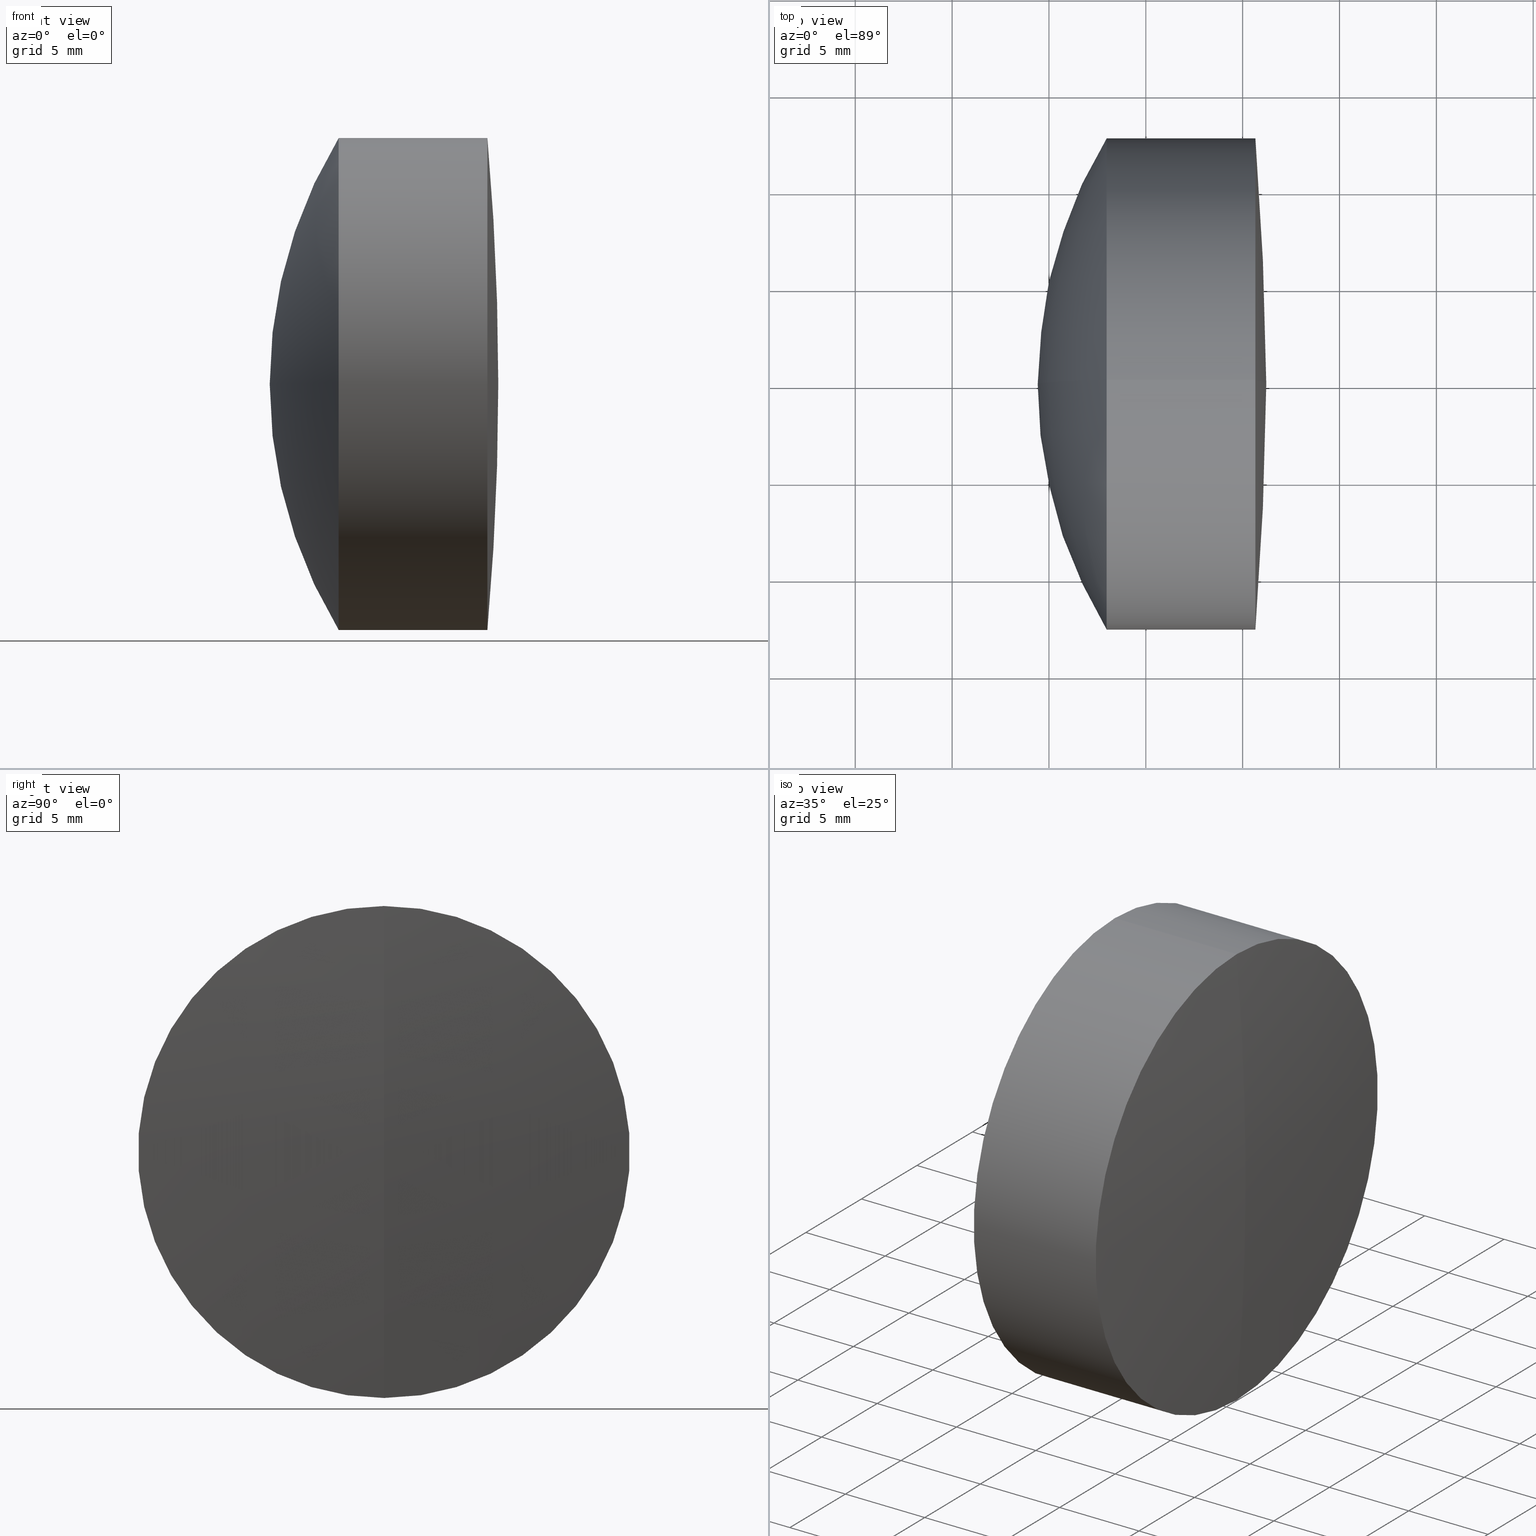
[diagram: canonical four-view strip — front | top / right | iso, engineering-drawing reading convention]
A machine part, canonical four-view strip (front | top / right | iso — engineering-drawing reading convention). The complete STEP part file that produces these views, byte-faithful:
ISO-10303-21;
HEADER;
FILE_DESCRIPTION (( 'STEP AP214' ),
    '1' );
FILE_NAME ('145160.STEP',
    '2019-06-07T04:26:02',
    ( 'user' ),
    ( '΢���й�' ),
    'SwSTEP 2.0',
    'SolidWorks 2016',
    '' );
FILE_SCHEMA (( 'AUTOMOTIVE_DESIGN' ));
ENDSEC;

DATA;
#1 = ORIENTED_EDGE ( 'NONE', *, *, #250, .T. ) ;
#2 = ORIENTED_EDGE ( 'NONE', *, *, #11, .T. ) ;
#3 = CARTESIAN_POINT ( 'NONE',  ( 43.85023858577233100, 0.0000000000000000000, -2.979725173126728300E-016 ) ) ;
#4 = ORIENTED_EDGE ( 'NONE', *, *, #292, .T. ) ;
#5 = ORIENTED_EDGE ( 'NONE', *, *, #297, .T. ) ;
#6 = VERTEX_POINT ( 'NONE', #286 ) ;
#7 = FACE_OUTER_BOUND ( 'NONE', #317, .T. ) ;
#8 = CARTESIAN_POINT ( 'NONE',  ( -0.8160621761658039000, 1.555301434917138400E-015, -12.69999999999999900 ) ) ;
#9 = ORIENTED_EDGE ( 'NONE', *, *, #125, .T. ) ;
#10 = DIRECTION ( 'NONE',  ( 0.0000000000000000000, -1.000000000000000000, 0.0000000000000000000 ) ) ;
#11 = EDGE_CURVE ( 'NONE', #28, #26, #267, .T. ) ;
#12 = CARTESIAN_POINT ( 'NONE',  ( 8.330238585772336900, 0.0000000000000000000, 0.0000000000000000000 ) ) ;
#13 = DIRECTION ( 'NONE',  ( 0.0000000000000000000, 0.0000000000000000000, -1.000000000000000000 ) ) ;
#14 = ORIENTED_EDGE ( 'NONE', *, *, #148, .F. ) ;
#15 = ORIENTED_EDGE ( 'NONE', *, *, #56, .T. ) ;
#16 = AXIS2_PLACEMENT_3D ( 'NONE', #3, #290, #70 ) ;
#17 = AXIS2_PLACEMENT_3D ( 'NONE', #109, #200, #213 ) ;
#18 = CARTESIAN_POINT ( 'NONE',  ( 8.330238585772336900, 0.0000000000000000000, 0.0000000000000000000 ) ) ;
#19 = DIRECTION ( 'NONE',  ( 0.0000000000000000000, 0.0000000000000000000, -1.000000000000000000 ) ) ;
#20 = EDGE_CURVE ( 'NONE', #132, #149, #75, .T. ) ;
#21 = FACE_OUTER_BOUND ( 'NONE', #78, .T. ) ;
#22 = EDGE_LOOP ( 'NONE', ( #259, #81, #327 ) ) ;
#23 = AXIS2_PLACEMENT_3D ( 'NONE', #340, #222, #260 ) ;
#24 = EDGE_LOOP ( 'NONE', ( #285, #9, #15 ) ) ;
#25 = DIRECTION ( 'NONE',  ( -0.0000000000000000000, -1.000000000000000000, -0.0000000000000000000 ) ) ;
#26 = VERTEX_POINT ( 'NONE', #223 ) ;
#27 = CYLINDRICAL_SURFACE ( 'NONE', #123, 12.69999999999999900 ) ;
#28 = VERTEX_POINT ( 'NONE', #254 ) ;
#29 = MANIFOLD_SOLID_BREP ( '��ת1', #274 ) ;
#30 = DIRECTION ( 'NONE',  ( -1.000000000000000000, -0.0000000000000000000, -0.0000000000000000000 ) ) ;
#31 = AXIS2_PLACEMENT_3D ( 'NONE', #301, #232, #117 ) ;
#32 = ADVANCED_FACE ( 'NONE', ( #209 ), #180, .T. ) ;
#33 = VECTOR ( 'NONE', #57, 1000.000000000000000 ) ;
#34 = FILL_AREA_STYLE_COLOUR ( '', #284 ) ;
#35 = CARTESIAN_POINT ( 'NONE',  ( -0.8160621761658039000, 0.0000000000000000000, 0.0000000000000000000 ) ) ;
#36 = DIRECTION ( 'NONE',  ( 0.0000000000000000000, -1.224646799147353500E-016, 1.000000000000000000 ) ) ;
#37 = SURFACE_STYLE_FILL_AREA ( #287 ) ;
#38 = DIRECTION ( 'NONE',  ( -0.0000000000000000000, 1.000000000000000000, 1.224646799147353200E-016 ) ) ;
#39 = MECHANICAL_DESIGN_GEOMETRIC_PRESENTATION_REPRESENTATION (  '', ( #169 ), #157 ) ;
#40 = PRESENTATION_LAYER_ASSIGNMENT (  '', '', ( #169 ) ) ;
#41 = DIRECTION ( 'NONE',  ( 0.0000000000000000000, 1.000000000000000000, 0.0000000000000000000 ) ) ;
#42 = CIRCLE ( 'NONE', #176, 21.08999999999999600 ) ;
#43 = SURFACE_SIDE_STYLE ('',( #37 ) ) ;
#44 = PRODUCT_DEFINITION_CONTEXT ( 'detailed design', #255, 'design' ) ;
#45 = FACE_OUTER_BOUND ( 'NONE', #216, .T. ) ;
#46 = VERTEX_POINT ( 'NONE', #89 ) ;
#47 = ORIENTED_EDGE ( 'NONE', *, *, #138, .T. ) ;
#48 = CARTESIAN_POINT ( 'NONE',  ( 25.16764040434280100, -1.555301434917138400E-015, 12.69999999999999900 ) ) ;
#49 = CARTESIAN_POINT ( 'NONE',  ( 25.16764040434280100, 0.0000000000000000000, 12.69999999999999900 ) ) ;
#50 = SPHERICAL_SURFACE ( 'NONE', #221, 21.08999999999999600 ) ;
#51 = EDGE_LOOP ( 'NONE', ( #307, #62, #1 ) ) ;
#52 = AXIS2_PLACEMENT_3D ( 'NONE', #188, #141, #143 ) ;
#53 =( NAMED_UNIT ( * ) PLANE_ANGLE_UNIT ( ) SI_UNIT ( $, .RADIAN. ) );
#54 = DIRECTION ( 'NONE',  ( 0.0000000000000000000, 0.0000000000000000000, 1.000000000000000000 ) ) ;
#55 = VERTEX_POINT ( 'NONE', #336 ) ;
#56 = EDGE_CURVE ( 'NONE', #26, #338, #129, .T. ) ;
#57 = DIRECTION ( 'NONE',  ( -1.000000000000000000, -0.0000000000000000000, -0.0000000000000000000 ) ) ;
#58 = ORIENTED_EDGE ( 'NONE', *, *, #211, .F. ) ;
#59 = DIRECTION ( 'NONE',  ( -1.000000000000000000, -0.0000000000000000000, -0.0000000000000000000 ) ) ;
#60 = DIRECTION ( 'NONE',  ( 0.0000000000000000000, 1.000000000000000000, -0.0000000000000000000 ) ) ;
#61 = CARTESIAN_POINT ( 'NONE',  ( 31.22023858577233200, 0.0000000000000000000, -8.812558366664354600E-015 ) ) ;
#62 = ORIENTED_EDGE ( 'NONE', *, *, #262, .T. ) ;
#63 =( LENGTH_UNIT ( ) NAMED_UNIT ( * ) SI_UNIT ( .MILLI., .METRE. ) );
#64 = ADVANCED_FACE ( 'NONE', ( #257 ), #145, .F. ) ;
#65 = AXIS2_PLACEMENT_3D ( 'NONE', #18, #10, #19 ) ;
#66 =( NAMED_UNIT ( * ) PLANE_ANGLE_UNIT ( ) SI_UNIT ( $, .RADIAN. ) );
#67 = EDGE_CURVE ( 'NONE', #6, #135, #181, .T. ) ;
#68 = CARTESIAN_POINT ( 'NONE',  ( 8.330238585772336900, 0.0000000000000000000, 0.0000000000000000000 ) ) ;
#69 = VECTOR ( 'NONE', #116, 1000.000000000000000 ) ;
#70 = DIRECTION ( 'NONE',  ( 0.0000000000000000000, 0.0000000000000000000, 1.000000000000000000 ) ) ;
#71 = CLOSED_SHELL ( 'NONE', ( #278, #133, #64, #160, #164, #246 ) ) ;
#72 = CARTESIAN_POINT ( 'NONE',  ( -0.5519199926577972300, 1.555301434917138200E-015, -12.69999999999999800 ) ) ;
#73 = ORIENTED_EDGE ( 'NONE', *, *, #119, .F. ) ;
#74 =( NAMED_UNIT ( * ) SI_UNIT ( $, .STERADIAN. ) SOLID_ANGLE_UNIT ( ) );
#75 = CIRCLE ( 'NONE', #65, 21.08999999999999600 ) ;
#76 = FILL_AREA_STYLE_COLOUR ( '', #316 ) ;
#77 = AXIS2_PLACEMENT_3D ( 'NONE', #212, #186, #291 ) ;
#78 = EDGE_LOOP ( 'NONE', ( #87, #90, #190 ) ) ;
#79 = APPLICATION_PROTOCOL_DEFINITION ( 'draft international standard', 'automotive_design', 1998, #217 ) ;
#80 = DIRECTION ( 'NONE',  ( 0.0000000000000000000, 0.0000000000000000000, -1.000000000000000000 ) ) ;
#81 = ORIENTED_EDGE ( 'NONE', *, *, #347, .T. ) ;
#82 = CIRCLE ( 'NONE', #341, 143.9199999999999900 ) ;
#83 = DIRECTION ( 'NONE',  ( 0.0000000000000000000, -1.000000000000000000, -1.224646799147353200E-016 ) ) ;
#84 = UNCERTAINTY_MEASURE_WITH_UNIT (LENGTH_MEASURE( 1.000000000000000100E-005 ), #113, 'distance_accuracy_value', 'NONE');
#85 = CYLINDRICAL_SURFACE ( 'NONE', #300, 12.69999999999999900 ) ;
#86 = PRODUCT_DEFINITION ( 'δ֪', '', #324, #44 ) ;
#87 = ORIENTED_EDGE ( 'NONE', *, *, #215, .F. ) ;
#88 = PRESENTATION_LAYER_ASSIGNMENT (  '', '', ( #115 ) ) ;
#89 = CARTESIAN_POINT ( 'NONE',  ( 30.65879745129665300, -1.555301434917133500E-015, 12.69999999999995800 ) ) ;
#90 = ORIENTED_EDGE ( 'NONE', *, *, #119, .T. ) ;
#91 =( NAMED_UNIT ( * ) PLANE_ANGLE_UNIT ( ) SI_UNIT ( $, .RADIAN. ) );
#92 = PRESENTATION_STYLE_ASSIGNMENT (( #318 ) ) ;
#93 = EDGE_CURVE ( 'NONE', #149, #55, #146, .T. ) ;
#94 =( GEOMETRIC_REPRESENTATION_CONTEXT ( 3 ) GLOBAL_UNCERTAINTY_ASSIGNED_CONTEXT ( ( #174 ) ) GLOBAL_UNIT_ASSIGNED_CONTEXT ( ( #99, #91, #315 ) ) REPRESENTATION_CONTEXT ( 'NONE', 'WORKASPACE' ) );
#95 = CYLINDRICAL_SURFACE ( 'NONE', #17, 12.69999999999999800 ) ;
#96 = AXIS2_PLACEMENT_3D ( 'NONE', #304, #251, #36 ) ;
#97 =( NAMED_UNIT ( * ) PLANE_ANGLE_UNIT ( ) SI_UNIT ( $, .RADIAN. ) );
#98 = DIRECTION ( 'NONE',  ( 0.0000000000000000000, 0.0000000000000000000, 1.000000000000000000 ) ) ;
#99 =( LENGTH_UNIT ( ) NAMED_UNIT ( * ) SI_UNIT ( .MILLI., .METRE. ) );
#100 = AXIS2_PLACEMENT_3D ( 'NONE', #114, #183, #142 ) ;
#101 = DIRECTION ( 'NONE',  ( -1.000000000000000000, -0.0000000000000000000, -0.0000000000000000000 ) ) ;
#102 = CARTESIAN_POINT ( 'NONE',  ( 8.330238585772336900, 0.0000000000000000000, 0.0000000000000000000 ) ) ;
#103 = FILL_AREA_STYLE ('',( #76 ) ) ;
#104 = CARTESIAN_POINT ( 'NONE',  ( -0.8160621761658039000, 0.0000000000000000000, 0.0000000000000000000 ) ) ;
#105 = PRODUCT ( '145160', '145160', '', ( #249 ) ) ;
#106 = CIRCLE ( 'NONE', #151, 12.69999999999999800 ) ;
#107 = CIRCLE ( 'NONE', #100, 12.69999999999999900 ) ;
#108 = ORIENTED_EDGE ( 'NONE', *, *, #279, .T. ) ;
#109 = CARTESIAN_POINT ( 'NONE',  ( -0.5519199926577972300, 0.0000000000000000000, 0.0000000000000000000 ) ) ;
#110 = EDGE_CURVE ( 'NONE', #46, #28, #165, .T. ) ;
#111 =( GEOMETRIC_REPRESENTATION_CONTEXT ( 3 ) GLOBAL_UNCERTAINTY_ASSIGNED_CONTEXT ( ( #84 ) ) GLOBAL_UNIT_ASSIGNED_CONTEXT ( ( #113, #53, #74 ) ) REPRESENTATION_CONTEXT ( 'NONE', 'WORKASPACE' ) );
#112 = LINE ( 'NONE', #322, #166 ) ;
#113 =( LENGTH_UNIT ( ) NAMED_UNIT ( * ) SI_UNIT ( .MILLI., .METRE. ) );
#114 = CARTESIAN_POINT ( 'NONE',  ( 25.16764040434280100, 0.0000000000000000000, 0.0000000000000000000 ) ) ;
#115 = STYLED_ITEM ( 'NONE', ( #92 ), #144 ) ;
#116 = DIRECTION ( 'NONE',  ( -1.000000000000000000, -0.0000000000000000000, -0.0000000000000000000 ) ) ;
#117 = DIRECTION ( 'NONE',  ( 0.0000000000000000000, 0.0000000000000000000, -1.000000000000000000 ) ) ;
#118 = ORIENTED_EDGE ( 'NONE', *, *, #67, .F. ) ;
#119 = EDGE_CURVE ( 'NONE', #245, #28, #82, .T. ) ;
#120 = VERTEX_POINT ( 'NONE', #269 ) ;
#121 = CARTESIAN_POINT ( 'NONE',  ( 43.85023858577233100, 0.0000000000000000000, -2.979725173126728300E-016 ) ) ;
#122 = AXIS2_PLACEMENT_3D ( 'NONE', #265, #218, #308 ) ;
#123 = AXIS2_PLACEMENT_3D ( 'NONE', #104, #207, #323 ) ;
#124 = EDGE_LOOP ( 'NONE', ( #126, #182, #58 ) ) ;
#125 = EDGE_CURVE ( 'NONE', #235, #26, #236, .T. ) ;
#126 = ORIENTED_EDGE ( 'NONE', *, *, #347, .F. ) ;
#127 = DIRECTION ( 'NONE',  ( 0.0000000000000000000, 0.0000000000000000000, 1.000000000000000000 ) ) ;
#128 = EDGE_CURVE ( 'NONE', #28, #46, #106, .T. ) ;
#129 = CIRCLE ( 'NONE', #52, 12.69999999999999800 ) ;
#130 = PRESENTATION_STYLE_ASSIGNMENT (( #139 ) ) ;
#131 = CARTESIAN_POINT ( 'NONE',  ( 8.330238585772336900, 0.0000000000000000000, 0.0000000000000000000 ) ) ;
#132 = VERTEX_POINT ( 'NONE', #167 ) ;
#133 = ADVANCED_FACE ( 'NONE', ( #256 ), #337, .T. ) ;
#134 = AXIS2_PLACEMENT_3D ( 'NONE', #332, #242, #335 ) ;
#135 = VERTEX_POINT ( 'NONE', #224 ) ;
#136 = EDGE_LOOP ( 'NONE', ( #280, #253, #108, #227 ) ) ;
#137 = CARTESIAN_POINT ( 'NONE',  ( -0.8160621761658039000, 0.0000000000000000000, 12.69999999999999900 ) ) ;
#138 = EDGE_CURVE ( 'NONE', #120, #135, #252, .T. ) ;
#139 = SURFACE_STYLE_USAGE ( .BOTH. , #329 ) ;
#140 = SPHERICAL_SURFACE ( 'NONE', #77, 143.9199999999999900 ) ;
#141 = DIRECTION ( 'NONE',  ( -1.000000000000000000, -0.0000000000000000000, -0.0000000000000000000 ) ) ;
#142 = DIRECTION ( 'NONE',  ( 0.0000000000000000000, 0.0000000000000000000, 1.000000000000000000 ) ) ;
#143 = DIRECTION ( 'NONE',  ( 0.0000000000000000000, 0.0000000000000000000, 1.000000000000000000 ) ) ;
#144 = MANIFOLD_SOLID_BREP ( '��ת2', #71 ) ;
#145 = SPHERICAL_SURFACE ( 'NONE', #210, 21.08999999999999600 ) ;
#146 = CIRCLE ( 'NONE', #264, 12.69999999999999900 ) ;
#147 = EDGE_LOOP ( 'NONE', ( #258, #2, #273, #14 ) ) ;
#148 = EDGE_CURVE ( 'NONE', #46, #338, #112, .T. ) ;
#149 = VERTEX_POINT ( 'NONE', #49 ) ;
#150 = CARTESIAN_POINT ( 'NONE',  ( -112.6997614142276700, 0.0000000000000000000, 0.0000000000000000000 ) ) ;
#151 = AXIS2_PLACEMENT_3D ( 'NONE', #195, #298, #283 ) ;
#152 = AXIS2_PLACEMENT_3D ( 'NONE', #309, #330, #54 ) ;
#153 = DIRECTION ( 'NONE',  ( 0.0000000000000000000, 1.000000000000000000, 0.0000000000000000000 ) ) ;
#154 = DIRECTION ( 'NONE',  ( 0.0000000000000000000, -1.000000000000000000, -1.224646799147353200E-016 ) ) ;
#155 = CIRCLE ( 'NONE', #194, 12.69999999999999900 ) ;
#156 = FACE_OUTER_BOUND ( 'NONE', #22, .T. ) ;
#157 =( GEOMETRIC_REPRESENTATION_CONTEXT ( 3 ) GLOBAL_UNCERTAINTY_ASSIGNED_CONTEXT ( ( #179 ) ) GLOBAL_UNIT_ASSIGNED_CONTEXT ( ( #302, #66, #168 ) ) REPRESENTATION_CONTEXT ( 'NONE', 'WORKASPACE' ) );
#158 = DIRECTION ( 'NONE',  ( 0.0000000000000000000, -1.224646799147353200E-016, 1.000000000000000000 ) ) ;
#159 = CARTESIAN_POINT ( 'NONE',  ( 29.42023858577233500, 0.0000000000000000000, -1.291390049700883900E-015 ) ) ;
#160 = ADVANCED_FACE ( 'NONE', ( #310 ), #299, .F. ) ;
#161 = FACE_OUTER_BOUND ( 'NONE', #196, .T. ) ;
#162 = ORIENTED_EDGE ( 'NONE', *, *, #305, .T. ) ;
#163 = ADVANCED_FACE ( 'NONE', ( #156 ), #50, .T. ) ;
#164 = ADVANCED_FACE ( 'NONE', ( #21 ), #140, .T. ) ;
#165 = CIRCLE ( 'NONE', #152, 12.69999999999999800 ) ;
#166 = VECTOR ( 'NONE', #241, 1000.000000000000000 ) ;
#167 = CARTESIAN_POINT ( 'NONE',  ( 29.42023858577233500, 0.0000000000000000000, 1.291390049700883900E-015 ) ) ;
#168 =( NAMED_UNIT ( * ) SI_UNIT ( $, .STERADIAN. ) SOLID_ANGLE_UNIT ( ) );
#169 = STYLED_ITEM ( 'NONE', ( #130 ), #331 ) ;
#170 = LINE ( 'NONE', #137, #33 ) ;
#171 = AXIS2_PLACEMENT_3D ( 'NONE', #185, #30, #127 ) ;
#172 = CARTESIAN_POINT ( 'NONE',  ( 8.330238585772336900, 0.0000000000000000000, 0.0000000000000000000 ) ) ;
#173 = ORIENTED_EDGE ( 'NONE', *, *, #56, .F. ) ;
#174 = UNCERTAINTY_MEASURE_WITH_UNIT (LENGTH_MEASURE( 1.000000000000000100E-005 ), #99, 'distance_accuracy_value', 'NONE');
#175 = CIRCLE ( 'NONE', #96, 21.08999999999999600 ) ;
#176 = AXIS2_PLACEMENT_3D ( 'NONE', #102, #83, #240 ) ;
#177 = CIRCLE ( 'NONE', #189, 143.9199999999999900 ) ;
#178 = DIRECTION ( 'NONE',  ( -1.000000000000000000, -0.0000000000000000000, -0.0000000000000000000 ) ) ;
#179 = UNCERTAINTY_MEASURE_WITH_UNIT (LENGTH_MEASURE( 1.000000000000000100E-005 ), #302, 'distance_accuracy_value', 'NONE');
#180 = SPHERICAL_SURFACE ( 'NONE', #293, 21.08999999999999600 ) ;
#181 = CIRCLE ( 'NONE', #243, 24.42999999999999600 ) ;
#182 = ORIENTED_EDGE ( 'NONE', *, *, #20, .T. ) ;
#183 = DIRECTION ( 'NONE',  ( -1.000000000000000000, -0.0000000000000000000, -0.0000000000000000000 ) ) ;
#184 = PRODUCT_DEFINITION_SHAPE ( 'NONE', 'NONE',  #86 ) ;
#185 = CARTESIAN_POINT ( 'NONE',  ( 25.16764040434280100, 0.0000000000000000000, 0.0000000000000000000 ) ) ;
#186 = DIRECTION ( 'NONE',  ( -0.0000000000000000000, -1.000000000000000000, -0.0000000000000000000 ) ) ;
#187 = APPLICATION_PROTOCOL_DEFINITION ( 'draft international standard', 'automotive_design', 1998, #255 ) ;
#188 = CARTESIAN_POINT ( 'NONE',  ( 25.16764040434280100, 0.0000000000000000000, 0.0000000000000000000 ) ) ;
#189 = AXIS2_PLACEMENT_3D ( 'NONE', #150, #154, #239 ) ;
#190 = ORIENTED_EDGE ( 'NONE', *, *, #110, .F. ) ;
#191 = ORIENTED_EDGE ( 'NONE', *, *, #148, .T. ) ;
#192 = ADVANCED_FACE ( 'NONE', ( #45 ), #27, .T. ) ;
#193 = DIRECTION ( 'NONE',  ( 0.0000000000000000000, 0.0000000000000000000, 1.000000000000000000 ) ) ;
#194 = AXIS2_PLACEMENT_3D ( 'NONE', #261, #233, #270 ) ;
#195 = CARTESIAN_POINT ( 'NONE',  ( 30.65879745129665000, 0.0000000000000000000, 0.0000000000000000000 ) ) ;
#196 = EDGE_LOOP ( 'NONE', ( #5, #342, #294 ) ) ;
#197 = STYLED_ITEM ( 'NONE', ( #208 ), #29 ) ;
#198 = SURFACE_SIDE_STYLE ('',( #263 ) ) ;
#199 = SPHERICAL_SURFACE ( 'NONE', #16, 24.42999999999999600 ) ;
#200 = DIRECTION ( 'NONE',  ( -1.000000000000000000, -0.0000000000000000000, -0.0000000000000000000 ) ) ;
#201 = DIRECTION ( 'NONE',  ( 0.0000000000000000000, -1.000000000000000000, 0.0000000000000000000 ) ) ;
#202 = ORIENTED_EDGE ( 'NONE', *, *, #128, .F. ) ;
#203 = ORIENTED_EDGE ( 'NONE', *, *, #11, .F. ) ;
#204 = DIRECTION ( 'NONE',  ( 0.0000000000000000000, 0.0000000000000000000, 1.000000000000000000 ) ) ;
#205 = DIRECTION ( 'NONE',  ( 0.0000000000000000000, 0.0000000000000000000, 1.000000000000000000 ) ) ;
#206 = CARTESIAN_POINT ( 'NONE',  ( -112.6997614142276700, 0.0000000000000000000, 0.0000000000000000000 ) ) ;
#207 = DIRECTION ( 'NONE',  ( -1.000000000000000000, -0.0000000000000000000, -0.0000000000000000000 ) ) ;
#208 = PRESENTATION_STYLE_ASSIGNMENT (( #334 ) ) ;
#209 = FACE_OUTER_BOUND ( 'NONE', #124, .T. ) ;
#210 = AXIS2_PLACEMENT_3D ( 'NONE', #12, #25, #13 ) ;
#211 = EDGE_CURVE ( 'NONE', #55, #149, #107, .T. ) ;
#212 = CARTESIAN_POINT ( 'NONE',  ( -112.6997614142276700, 0.0000000000000000000, 0.0000000000000000000 ) ) ;
#213 = DIRECTION ( 'NONE',  ( 0.0000000000000000000, 0.0000000000000000000, 1.000000000000000000 ) ) ;
#214 = CARTESIAN_POINT ( 'NONE',  ( 22.98076566478077600, 0.0000000000000000000, 0.0000000000000000000 ) ) ;
#215 = EDGE_CURVE ( 'NONE', #245, #46, #177, .T. ) ;
#216 = EDGE_LOOP ( 'NONE', ( #346, #162, #311, #325 ) ) ;
#217 = APPLICATION_CONTEXT ( 'automotive_design' ) ;
#218 = DIRECTION ( 'NONE',  ( 0.0000000000000000000, 0.0000000000000000000, 1.000000000000000000 ) ) ;
#219 = COLOUR_RGB ( '',1.000000000000000000, 1.000000000000000000, 1.000000000000000000 ) ;
#220 = EDGE_LOOP ( 'NONE', ( #203, #339, #191, #173 ) ) ;
#221 = AXIS2_PLACEMENT_3D ( 'NONE', #68, #41, #229 ) ;
#222 = DIRECTION ( 'NONE',  ( -0.0000000000000000000, -1.000000000000000000, -0.0000000000000000000 ) ) ;
#223 = CARTESIAN_POINT ( 'NONE',  ( 25.16764040434280100, 0.0000000000000000000, -12.69999999999999900 ) ) ;
#224 = CARTESIAN_POINT ( 'NONE',  ( 19.42023858577233500, 0.0000000000000000000, 1.197933547845818900E-015 ) ) ;
#225 = SURFACE_STYLE_FILL_AREA ( #103 ) ;
#226 =( GEOMETRIC_REPRESENTATION_CONTEXT ( 3 ) GLOBAL_UNCERTAINTY_ASSIGNED_CONTEXT ( ( #320 ) ) GLOBAL_UNIT_ASSIGNED_CONTEXT ( ( #63, #97, #303 ) ) REPRESENTATION_CONTEXT ( 'NONE', 'WORKASPACE' ) );
#227 = ORIENTED_EDGE ( 'NONE', *, *, #292, .F. ) ;
#228 = FILL_AREA_STYLE ('',( #277 ) ) ;
#229 = DIRECTION ( 'NONE',  ( 0.0000000000000000000, 0.0000000000000000000, 1.000000000000000000 ) ) ;
#230 = SHAPE_DEFINITION_REPRESENTATION ( #184, #331 ) ;
#231 = FACE_OUTER_BOUND ( 'NONE', #220, .T. ) ;
#232 = DIRECTION ( 'NONE',  ( -0.0000000000000000000, -1.000000000000000000, -0.0000000000000000000 ) ) ;
#233 = DIRECTION ( 'NONE',  ( -1.000000000000000000, -0.0000000000000000000, -0.0000000000000000000 ) ) ;
#234 = MECHANICAL_DESIGN_GEOMETRIC_PRESENTATION_REPRESENTATION (  '', ( #197 ), #226 ) ;
#235 = VERTEX_POINT ( 'NONE', #159 ) ;
#236 = CIRCLE ( 'NONE', #288, 21.08999999999999600 ) ;
#237 = SPHERICAL_SURFACE ( 'NONE', #248, 24.42999999999999600 ) ;
#238 = MECHANICAL_DESIGN_GEOMETRIC_PRESENTATION_REPRESENTATION (  '', ( #115 ), #111 ) ;
#239 = DIRECTION ( 'NONE',  ( 0.0000000000000000000, 1.224646799147353500E-016, -1.000000000000000000 ) ) ;
#240 = DIRECTION ( 'NONE',  ( 0.0000000000000000000, 1.224646799147353500E-016, -1.000000000000000000 ) ) ;
#241 = DIRECTION ( 'NONE',  ( -1.000000000000000000, -0.0000000000000000000, -0.0000000000000000000 ) ) ;
#242 = DIRECTION ( 'NONE',  ( -1.000000000000000000, -0.0000000000000000000, -0.0000000000000000000 ) ) ;
#243 = AXIS2_PLACEMENT_3D ( 'NONE', #312, #38, #158 ) ;
#244 = CIRCLE ( 'NONE', #171, 12.69999999999999800 ) ;
#245 = VERTEX_POINT ( 'NONE', #61 ) ;
#246 = ADVANCED_FACE ( 'NONE', ( #231 ), #95, .T. ) ;
#247 = DIRECTION ( 'NONE',  ( 0.0000000000000000000, 0.0000000000000000000, 1.000000000000000000 ) ) ;
#248 = AXIS2_PLACEMENT_3D ( 'NONE', #121, #153, #204 ) ;
#249 = PRODUCT_CONTEXT ( 'NONE', #217, 'mechanical' ) ;
#250 = EDGE_CURVE ( 'NONE', #338, #26, #244, .T. ) ;
#251 = DIRECTION ( 'NONE',  ( -0.0000000000000000000, 1.000000000000000000, 1.224646799147353200E-016 ) ) ;
#252 = CIRCLE ( 'NONE', #313, 24.42999999999999600 ) ;
#253 = ORIENTED_EDGE ( 'NONE', *, *, #211, .T. ) ;
#254 = CARTESIAN_POINT ( 'NONE',  ( 30.65879745129665300, 0.0000000000000000000, -12.69999999999995800 ) ) ;
#255 = APPLICATION_CONTEXT ( 'automotive_design' ) ;
#256 = FACE_OUTER_BOUND ( 'NONE', #326, .T. ) ;
#257 = FACE_OUTER_BOUND ( 'NONE', #51, .T. ) ;
#258 = ORIENTED_EDGE ( 'NONE', *, *, #110, .T. ) ;
#259 = ORIENTED_EDGE ( 'NONE', *, *, #20, .F. ) ;
#260 = DIRECTION ( 'NONE',  ( 0.0000000000000000000, 0.0000000000000000000, -1.000000000000000000 ) ) ;
#261 = CARTESIAN_POINT ( 'NONE',  ( 22.98076566478077600, 0.0000000000000000000, 0.0000000000000000000 ) ) ;
#262 = EDGE_CURVE ( 'NONE', #235, #338, #42, .T. ) ;
#263 = SURFACE_STYLE_FILL_AREA ( #228 ) ;
#264 = AXIS2_PLACEMENT_3D ( 'NONE', #289, #344, #247 ) ;
#265 = CARTESIAN_POINT ( 'NONE',  ( 0.0000000000000000000, 0.0000000000000000000, 0.0000000000000000000 ) ) ;
#266 = DIRECTION ( 'NONE',  ( 0.0000000000000000000, 1.000000000000000000, -0.0000000000000000000 ) ) ;
#267 = LINE ( 'NONE', #72, #69 ) ;
#268 = VECTOR ( 'NONE', #59, 1000.000000000000000 ) ;
#269 = CARTESIAN_POINT ( 'NONE',  ( 22.98076566478077300, 0.0000000000000000000, 12.69999999999999900 ) ) ;
#270 = DIRECTION ( 'NONE',  ( 0.0000000000000000000, 0.0000000000000000000, 1.000000000000000000 ) ) ;
#271 = CARTESIAN_POINT ( 'NONE',  ( 43.85023858577233100, 0.0000000000000000000, -2.979725173126728300E-016 ) ) ;
#272 = CYLINDRICAL_SURFACE ( 'NONE', #134, 12.69999999999999800 ) ;
#273 = ORIENTED_EDGE ( 'NONE', *, *, #250, .F. ) ;
#274 = CLOSED_SHELL ( 'NONE', ( #163, #192, #306, #281, #275, #32 ) ) ;
#275 = ADVANCED_FACE ( 'NONE', ( #333 ), #85, .T. ) ;
#276 = DIRECTION ( 'NONE',  ( 0.0000000000000000000, 0.0000000000000000000, 1.000000000000000000 ) ) ;
#277 = FILL_AREA_STYLE_COLOUR ( '', #219 ) ;
#278 = ADVANCED_FACE ( 'NONE', ( #321 ), #272, .T. ) ;
#279 = EDGE_CURVE ( 'NONE', #149, #120, #170, .T. ) ;
#280 = ORIENTED_EDGE ( 'NONE', *, *, #305, .F. ) ;
#281 = ADVANCED_FACE ( 'NONE', ( #7 ), #199, .T. ) ;
#282 = PRESENTATION_LAYER_ASSIGNMENT (  '', '', ( #197 ) ) ;
#283 = DIRECTION ( 'NONE',  ( 0.0000000000000000000, 0.0000000000000000000, 1.000000000000000000 ) ) ;
#284 = COLOUR_RGB ( '',1.000000000000000000, 1.000000000000000000, 1.000000000000000000 ) ;
#285 = ORIENTED_EDGE ( 'NONE', *, *, #262, .F. ) ;
#286 = CARTESIAN_POINT ( 'NONE',  ( 22.98076566478077300, 1.555301434917138400E-015, -12.69999999999999900 ) ) ;
#287 = FILL_AREA_STYLE ('',( #34 ) ) ;
#288 = AXIS2_PLACEMENT_3D ( 'NONE', #172, #266, #328 ) ;
#289 = CARTESIAN_POINT ( 'NONE',  ( 25.16764040434280100, 0.0000000000000000000, 0.0000000000000000000 ) ) ;
#290 = DIRECTION ( 'NONE',  ( 0.0000000000000000000, 1.000000000000000000, 0.0000000000000000000 ) ) ;
#291 = DIRECTION ( 'NONE',  ( 0.0000000000000000000, 0.0000000000000000000, -1.000000000000000000 ) ) ;
#292 = EDGE_CURVE ( 'NONE', #6, #120, #314, .T. ) ;
#293 = AXIS2_PLACEMENT_3D ( 'NONE', #131, #295, #98 ) ;
#294 = ORIENTED_EDGE ( 'NONE', *, *, #138, .F. ) ;
#295 = DIRECTION ( 'NONE',  ( 0.0000000000000000000, 1.000000000000000000, 0.0000000000000000000 ) ) ;
#296 = AXIS2_PLACEMENT_3D ( 'NONE', #214, #101, #205 ) ;
#297 = EDGE_CURVE ( 'NONE', #120, #6, #155, .T. ) ;
#298 = DIRECTION ( 'NONE',  ( -1.000000000000000000, -0.0000000000000000000, -0.0000000000000000000 ) ) ;
#299 = SPHERICAL_SURFACE ( 'NONE', #31, 21.08999999999999600 ) ;
#300 = AXIS2_PLACEMENT_3D ( 'NONE', #35, #178, #276 ) ;
#301 = CARTESIAN_POINT ( 'NONE',  ( 8.330238585772336900, 0.0000000000000000000, 0.0000000000000000000 ) ) ;
#302 =( LENGTH_UNIT ( ) NAMED_UNIT ( * ) SI_UNIT ( .MILLI., .METRE. ) );
#303 =( NAMED_UNIT ( * ) SI_UNIT ( $, .STERADIAN. ) SOLID_ANGLE_UNIT ( ) );
#304 = CARTESIAN_POINT ( 'NONE',  ( 8.330238585772336900, 0.0000000000000000000, 0.0000000000000000000 ) ) ;
#305 = EDGE_CURVE ( 'NONE', #55, #6, #319, .T. ) ;
#306 = ADVANCED_FACE ( 'NONE', ( #161 ), #237, .T. ) ;
#307 = ORIENTED_EDGE ( 'NONE', *, *, #125, .F. ) ;
#308 = DIRECTION ( 'NONE',  ( 1.000000000000000000, 0.0000000000000000000, 0.0000000000000000000 ) ) ;
#309 = CARTESIAN_POINT ( 'NONE',  ( 30.65879745129665000, 0.0000000000000000000, 0.0000000000000000000 ) ) ;
#310 = FACE_OUTER_BOUND ( 'NONE', #24, .T. ) ;
#311 = ORIENTED_EDGE ( 'NONE', *, *, #297, .F. ) ;
#312 = CARTESIAN_POINT ( 'NONE',  ( 43.85023858577233100, 0.0000000000000000000, -2.979725173126728300E-016 ) ) ;
#313 = AXIS2_PLACEMENT_3D ( 'NONE', #271, #201, #80 ) ;
#314 = CIRCLE ( 'NONE', #296, 12.69999999999999900 ) ;
#315 =( NAMED_UNIT ( * ) SI_UNIT ( $, .STERADIAN. ) SOLID_ANGLE_UNIT ( ) );
#316 = COLOUR_RGB ( '',1.000000000000000000, 1.000000000000000000, 1.000000000000000000 ) ;
#317 = EDGE_LOOP ( 'NONE', ( #118, #4, #47 ) ) ;
#318 = SURFACE_STYLE_USAGE ( .BOTH. , #198 ) ;
#319 = LINE ( 'NONE', #8, #268 ) ;
#320 = UNCERTAINTY_MEASURE_WITH_UNIT (LENGTH_MEASURE( 1.000000000000000100E-005 ), #63, 'distance_accuracy_value', 'NONE');
#321 = FACE_OUTER_BOUND ( 'NONE', #147, .T. ) ;
#322 = CARTESIAN_POINT ( 'NONE',  ( -0.5519199926577972300, 0.0000000000000000000, 12.69999999999999800 ) ) ;
#323 = DIRECTION ( 'NONE',  ( 0.0000000000000000000, 0.0000000000000000000, 1.000000000000000000 ) ) ;
#324 = PRODUCT_DEFINITION_FORMATION_WITH_SPECIFIED_SOURCE ( '�κ�', '', #105, .NOT_KNOWN. ) ;
#325 = ORIENTED_EDGE ( 'NONE', *, *, #279, .F. ) ;
#326 = EDGE_LOOP ( 'NONE', ( #73, #343, #202 ) ) ;
#327 = ORIENTED_EDGE ( 'NONE', *, *, #93, .F. ) ;
#328 = DIRECTION ( 'NONE',  ( 0.0000000000000000000, 0.0000000000000000000, 1.000000000000000000 ) ) ;
#329 = SURFACE_SIDE_STYLE ('',( #225 ) ) ;
#330 = DIRECTION ( 'NONE',  ( -1.000000000000000000, -0.0000000000000000000, -0.0000000000000000000 ) ) ;
#331 = ADVANCED_BREP_SHAPE_REPRESENTATION ( '145160', ( #29, #144, #122 ), #94 ) ;
#332 = CARTESIAN_POINT ( 'NONE',  ( -0.5519199926577972300, 0.0000000000000000000, 0.0000000000000000000 ) ) ;
#333 = FACE_OUTER_BOUND ( 'NONE', #136, .T. ) ;
#334 = SURFACE_STYLE_USAGE ( .BOTH. , #43 ) ;
#335 = DIRECTION ( 'NONE',  ( 0.0000000000000000000, 0.0000000000000000000, 1.000000000000000000 ) ) ;
#336 = CARTESIAN_POINT ( 'NONE',  ( 25.16764040434280100, 1.555301434917138400E-015, -12.69999999999999900 ) ) ;
#337 = SPHERICAL_SURFACE ( 'NONE', #23, 143.9199999999999900 ) ;
#338 = VERTEX_POINT ( 'NONE', #48 ) ;
#339 = ORIENTED_EDGE ( 'NONE', *, *, #128, .T. ) ;
#340 = CARTESIAN_POINT ( 'NONE',  ( -112.6997614142276700, 0.0000000000000000000, 0.0000000000000000000 ) ) ;
#341 = AXIS2_PLACEMENT_3D ( 'NONE', #206, #60, #193 ) ;
#342 = ORIENTED_EDGE ( 'NONE', *, *, #67, .T. ) ;
#343 = ORIENTED_EDGE ( 'NONE', *, *, #215, .T. ) ;
#344 = DIRECTION ( 'NONE',  ( -1.000000000000000000, -0.0000000000000000000, -0.0000000000000000000 ) ) ;
#345 = PRODUCT_RELATED_PRODUCT_CATEGORY ( 'part', '', ( #105 ) ) ;
#346 = ORIENTED_EDGE ( 'NONE', *, *, #93, .T. ) ;
#347 = EDGE_CURVE ( 'NONE', #132, #55, #175, .T. ) ;
ENDSEC;
END-ISO-10303-21;
